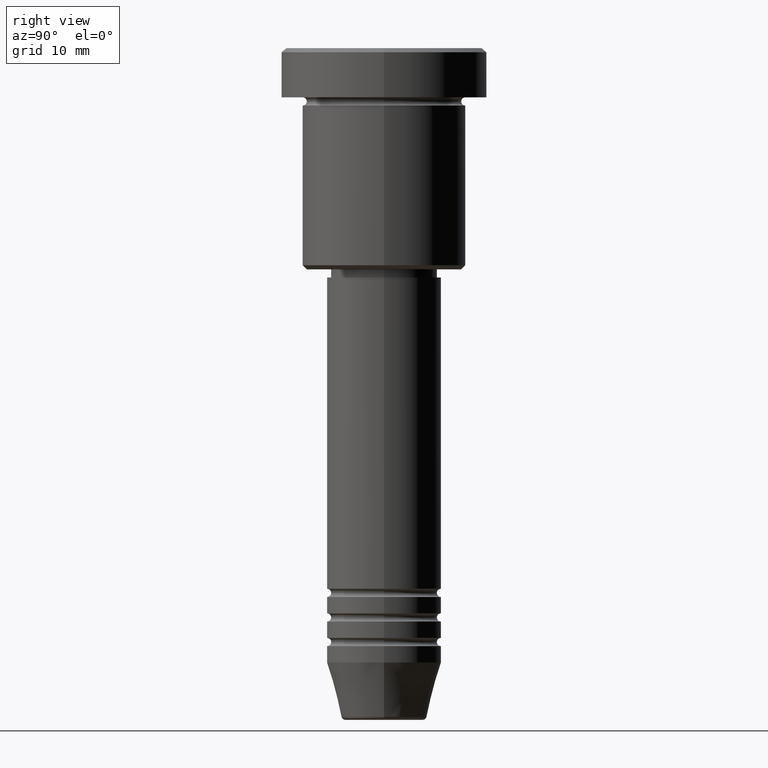
[diagram: clean part render]
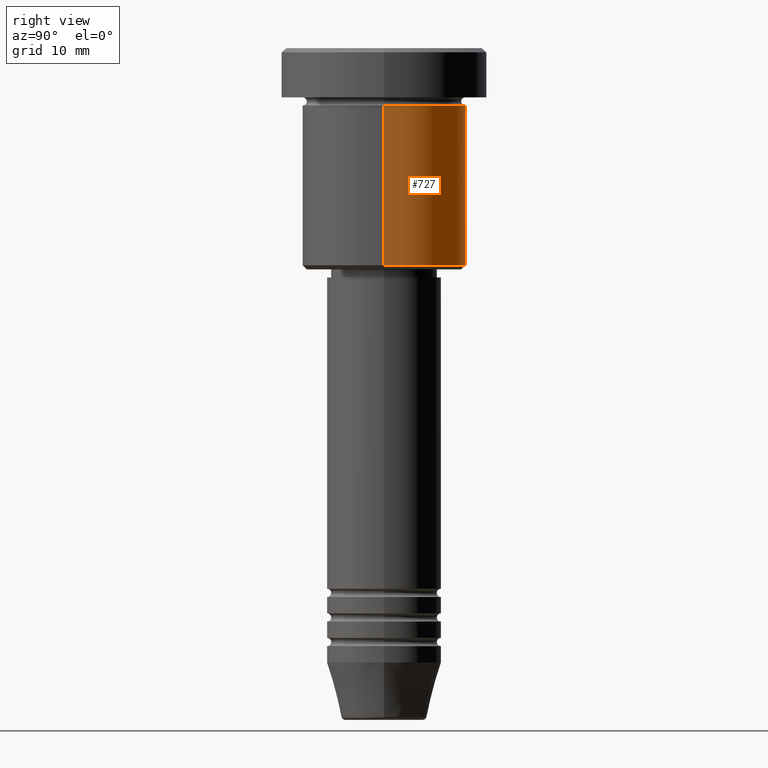
[diagram: same view with one face highlighted and labeled with its STEP entity id]
A machine part, right view. The second image highlights one B-rep face of the part: STEP entity #727.
In plain terms, the highlighted cylindrical surface (partial cylindrical patch) has radius 10 mm, axis along (-0, -0, 1).
Its self-contained STEP definition (entity closure, byte-faithful):
#3 = DIRECTION ( 'NONE',  ( -0.000000000000000000, -0.000000000000000000, 1.000000000000000000 ) ) ;
#10 = VECTOR ( 'NONE', #1023, 1000.000000000000000 ) ;
#22 = DIRECTION ( 'NONE',  ( -1.000000000000000000, 0.000000000000000000, 0.000000000000000000 ) ) ;
#46 = CARTESIAN_POINT ( 'NONE',  ( 10.00000000000000000, 0.000000000000000000, -26.50000000000000355 ) ) ;
#134 = ORIENTED_EDGE ( 'NONE', *, *, #512, .T. ) ;
#161 = VERTEX_POINT ( 'NONE', #46 ) ;
#193 = FACE_OUTER_BOUND ( 'NONE', #467, .T. ) ;
#276 = ORIENTED_EDGE ( 'NONE', *, *, #831, .F. ) ;
#294 = LINE ( 'NONE', #654, #10 ) ;
#330 = AXIS2_PLACEMENT_3D ( 'NONE', #566, #929, #22 ) ;
#340 = CARTESIAN_POINT ( 'NONE',  ( 10.00000000000000000, 0.000000000000000000, -6.999999999999996447 ) ) ;
#362 = CARTESIAN_POINT ( 'NONE',  ( 0.000000000000000000, 0.000000000000000000, 0.000000000000000000 ) ) ;
#397 = VERTEX_POINT ( 'NONE', #633 ) ;
#430 = CARTESIAN_POINT ( 'NONE',  ( -10.00000000000000000, 1.224646799147353256E-15, -26.50000000000000355 ) ) ;
#467 = EDGE_LOOP ( 'NONE', ( #876, #134, #631, #276 ) ) ;
#512 = EDGE_CURVE ( 'NONE', #1065, #397, #915, .T. ) ;
#544 = CARTESIAN_POINT ( 'NONE',  ( 0.000000000000000000, 0.000000000000000000, -6.999999999999996447 ) ) ;
#549 = EDGE_CURVE ( 'NONE', #161, #1065, #1055, .T. ) ;
#566 = CARTESIAN_POINT ( 'NONE',  ( 0.000000000000000000, 0.000000000000000000, -26.50000000000000355 ) ) ;
#631 = ORIENTED_EDGE ( 'NONE', *, *, #732, .F. ) ;
#633 = CARTESIAN_POINT ( 'NONE',  ( -10.00000000000000000, 1.224646799147353256E-15, -6.999999999999996447 ) ) ;
#639 = DIRECTION ( 'NONE',  ( 1.000000000000000000, 0.000000000000000000, 0.000000000000000000 ) ) ;
#643 = DIRECTION ( 'NONE',  ( -0.000000000000000000, -0.000000000000000000, 1.000000000000000000 ) ) ;
#654 = CARTESIAN_POINT ( 'NONE',  ( 10.00000000000000000, 0.000000000000000000, 0.000000000000000000 ) ) ;
#727 = ADVANCED_FACE ( 'NONE', ( #193 ), #1012, .T. ) ;
#730 = DIRECTION ( 'NONE',  ( 1.000000000000000000, 0.000000000000000000, 0.000000000000000000 ) ) ;
#732 = EDGE_CURVE ( 'NONE', #899, #397, #852, .T. ) ;
#759 = AXIS2_PLACEMENT_3D ( 'NONE', #362, #3, #730 ) ;
#818 = CARTESIAN_POINT ( 'NONE',  ( -10.00000000000000000, 1.224646799147353256E-15, 0.000000000000000000 ) ) ;
#831 = EDGE_CURVE ( 'NONE', #161, #899, #294, .T. ) ;
#852 = CIRCLE ( 'NONE', #974, 10.00000000000000000 ) ;
#876 = ORIENTED_EDGE ( 'NONE', *, *, #549, .T. ) ;
#899 = VERTEX_POINT ( 'NONE', #340 ) ;
#915 = LINE ( 'NONE', #818, #1140 ) ;
#919 = DIRECTION ( 'NONE',  ( -0.000000000000000000, -0.000000000000000000, 1.000000000000000000 ) ) ;
#929 = DIRECTION ( 'NONE',  ( -0.000000000000000000, -0.000000000000000000, 1.000000000000000000 ) ) ;
#974 = AXIS2_PLACEMENT_3D ( 'NONE', #544, #919, #639 ) ;
#1012 = CYLINDRICAL_SURFACE ( 'NONE', #759, 10.00000000000000000 ) ;
#1023 = DIRECTION ( 'NONE',  ( -0.000000000000000000, -0.000000000000000000, 1.000000000000000000 ) ) ;
#1055 = CIRCLE ( 'NONE', #330, 10.00000000000000000 ) ;
#1065 = VERTEX_POINT ( 'NONE', #430 ) ;
#1140 = VECTOR ( 'NONE', #643, 1000.000000000000000 ) ;